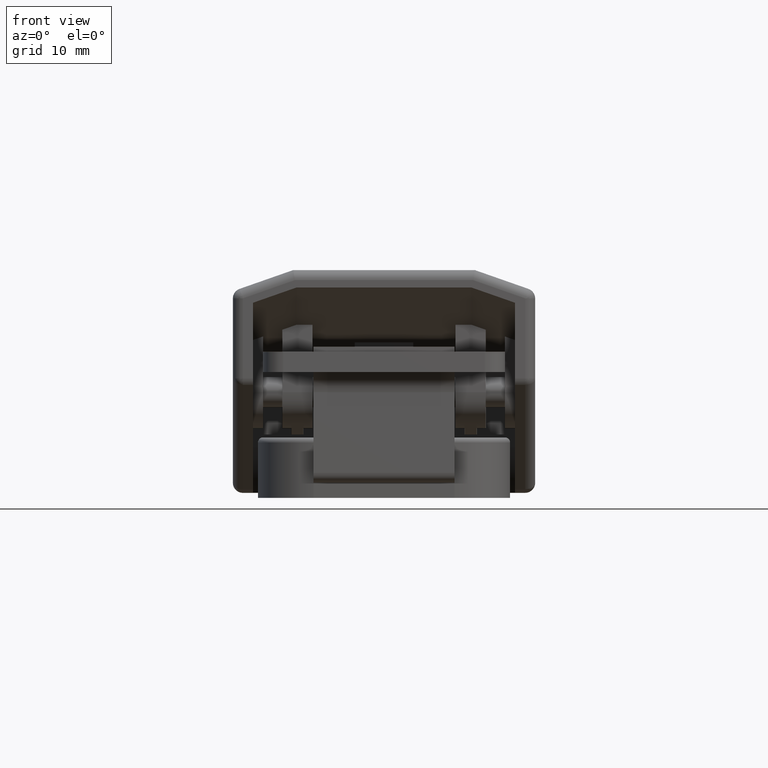
[diagram: clean part render]
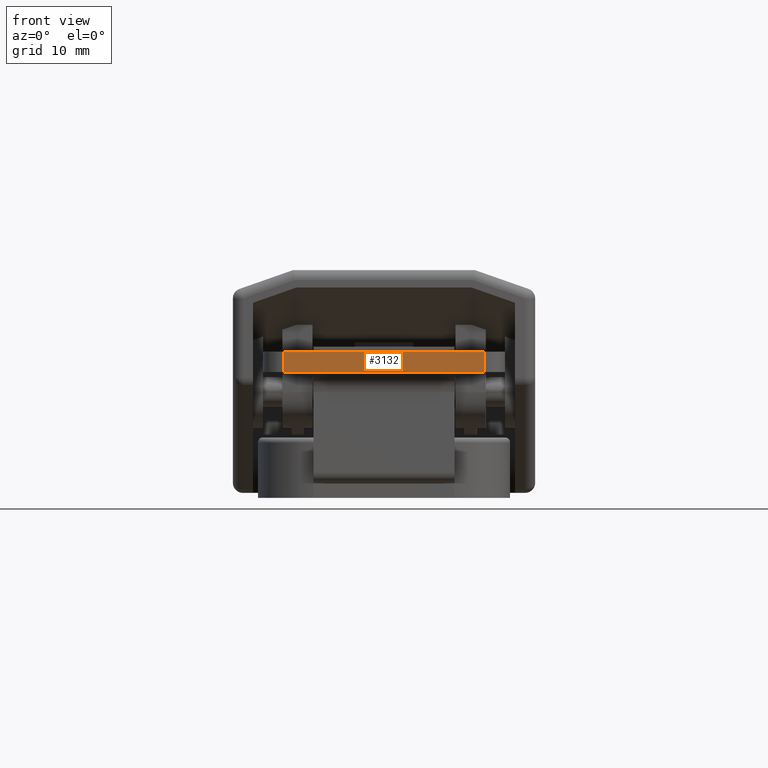
[diagram: same view with one face highlighted and labeled with its STEP entity id]
A machine part, front view. The second image highlights one B-rep face of the part: STEP entity #3132.
In plain terms, the highlighted planar face has unit normal (0, 1, 0).
Its self-contained STEP definition (entity closure, byte-faithful):
#657 = EDGE_CURVE ( 'NONE', #11855, #8703, #7502, .T. ) ;
#730 = VECTOR ( 'NONE', #1065, 1000.000000000000000 ) ;
#792 = AXIS2_PLACEMENT_3D ( 'NONE', #894, #7486, #937 ) ;
#894 = CARTESIAN_POINT ( 'NONE',  ( 12.00000000000000000, -56.50000000000000000, 7.499999999999991100 ) ) ;
#937 = DIRECTION ( 'NONE',  ( 0.0000000000000000000, -0.0000000000000000000, 1.000000000000000000 ) ) ;
#1021 = EDGE_CURVE ( 'NONE', #10332, #3287, #8173, .T. ) ;
#1065 = DIRECTION ( 'NONE',  ( -0.0000000000000000000, -0.0000000000000000000, 1.000000000000000000 ) ) ;
#2291 = FACE_OUTER_BOUND ( 'NONE', #5665, .T. ) ;
#2935 = CARTESIAN_POINT ( 'NONE',  ( -9.999999999999998200, -56.50000000000000000, 9.499999999999991100 ) ) ;
#3132 = ADVANCED_FACE ( 'NONE', ( #2291 ), #11853, .F. ) ;
#3285 = LINE ( 'NONE', #8686, #730 ) ;
#3287 = VERTEX_POINT ( 'NONE', #5924 ) ;
#3530 = LINE ( 'NONE', #5565, #9334 ) ;
#3777 = DIRECTION ( 'NONE',  ( -1.000000000000000000, -0.0000000000000000000, -0.0000000000000000000 ) ) ;
#3924 = VECTOR ( 'NONE', #3777, 1000.000000000000000 ) ;
#4064 = DIRECTION ( 'NONE',  ( -1.000000000000000000, -0.0000000000000000000, -0.0000000000000000000 ) ) ;
#4882 = ORIENTED_EDGE ( 'NONE', *, *, #657, .T. ) ;
#5286 = VECTOR ( 'NONE', #4064, 1000.000000000000000 ) ;
#5565 = CARTESIAN_POINT ( 'NONE',  ( -9.999999999999998200, -56.50000000000000000, 7.499999999999991100 ) ) ;
#5665 = EDGE_LOOP ( 'NONE', ( #4882, #6788, #12285, #10793 ) ) ;
#5924 = CARTESIAN_POINT ( 'NONE',  ( -9.999999999999998200, -56.50000000000000000, 7.499999999999991100 ) ) ;
#6788 = ORIENTED_EDGE ( 'NONE', *, *, #12066, .T. ) ;
#7382 = CARTESIAN_POINT ( 'NONE',  ( 10.00000000000000000, -56.50000000000000000, 9.499999999999991100 ) ) ;
#7486 = DIRECTION ( 'NONE',  ( 0.0000000000000000000, 1.000000000000000000, 0.0000000000000000000 ) ) ;
#7502 = LINE ( 'NONE', #13569, #3924 ) ;
#8173 = LINE ( 'NONE', #11669, #5286 ) ;
#8686 = CARTESIAN_POINT ( 'NONE',  ( 10.00000000000000000, -56.50000000000000000, 7.499999999999991100 ) ) ;
#8703 = VERTEX_POINT ( 'NONE', #2935 ) ;
#9334 = VECTOR ( 'NONE', #12138, 1000.000000000000000 ) ;
#10332 = VERTEX_POINT ( 'NONE', #11375 ) ;
#10793 = ORIENTED_EDGE ( 'NONE', *, *, #13427, .T. ) ;
#11375 = CARTESIAN_POINT ( 'NONE',  ( 10.00000000000000000, -56.50000000000000000, 7.499999999999991100 ) ) ;
#11669 = CARTESIAN_POINT ( 'NONE',  ( 12.00000000000000000, -56.50000000000000000, 7.499999999999991100 ) ) ;
#11853 = PLANE ( 'NONE',  #792 ) ;
#11855 = VERTEX_POINT ( 'NONE', #7382 ) ;
#12066 = EDGE_CURVE ( 'NONE', #8703, #3287, #3530, .T. ) ;
#12138 = DIRECTION ( 'NONE',  ( 0.0000000000000000000, 0.0000000000000000000, -1.000000000000000000 ) ) ;
#12285 = ORIENTED_EDGE ( 'NONE', *, *, #1021, .F. ) ;
#13427 = EDGE_CURVE ( 'NONE', #10332, #11855, #3285, .T. ) ;
#13569 = CARTESIAN_POINT ( 'NONE',  ( 12.00000000000000000, -56.50000000000000000, 9.499999999999991100 ) ) ;